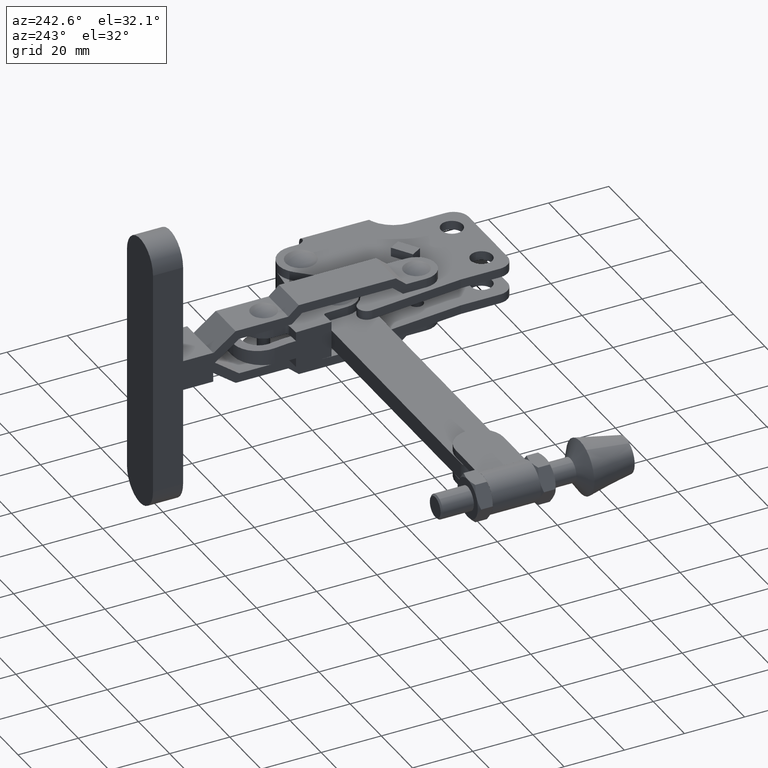
[diagram: clean part render]
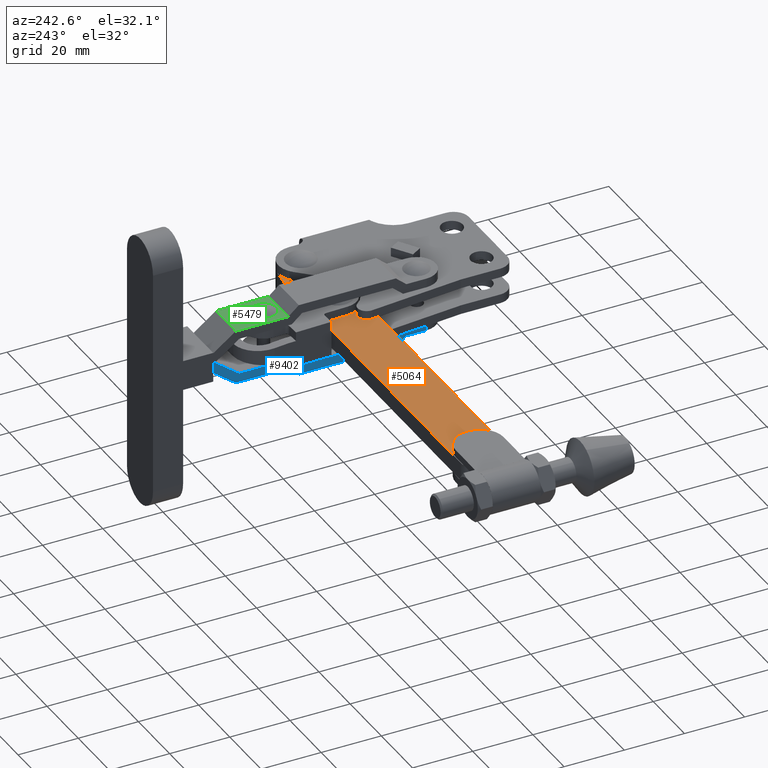
[diagram: same view with three faces highlighted in distinct colors, each labeled with its STEP entity id]
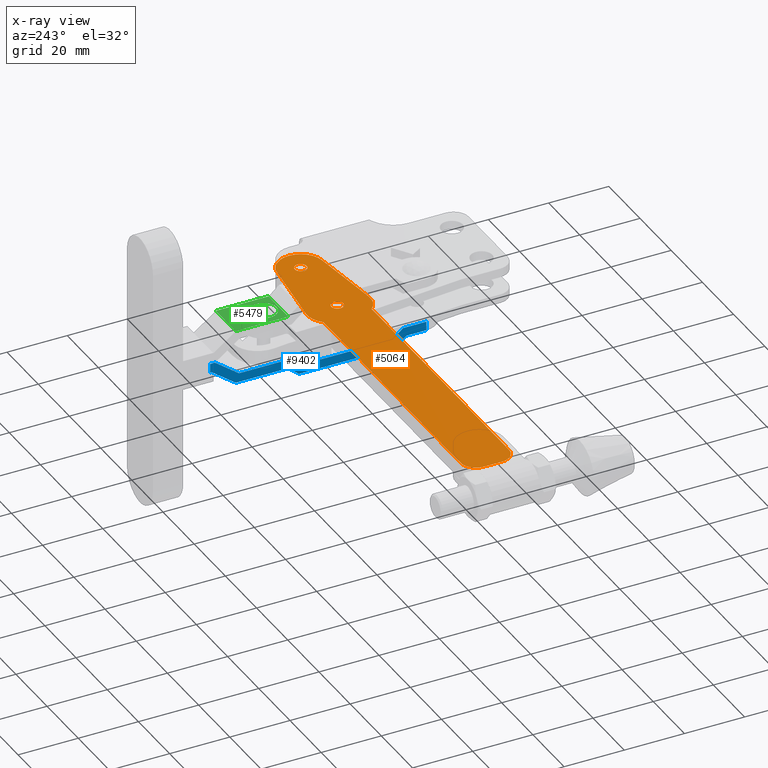
[diagram: x-ray of the same camera — body ghosted, the three highlighted faces saturated]
A machine part, auxiliary view with three faces highlighted in distinct colors.
The next image is the same camera in x-ray (body ghosted, the three faces saturated) — at least one of them is partly hidden behind the body in this view.
Their STEP definitions:

[orange] entity #5064 — the highlighted planar face has unit normal (0, -0, 1).
#175 = VERTEX_POINT ( 'NONE', #9964 ) ;
#482 = DIRECTION ( 'NONE',  ( 3.503246160812045800E-046, -6.509510804345187600E-030, 1.000000000000000000 ) ) ;
#1008 = DIRECTION ( 'NONE',  ( 3.503246160812045800E-046, -6.509510804345187600E-030, 1.000000000000000000 ) ) ;
#1068 = CIRCLE ( 'NONE', #4177, 2.000000000000001800 ) ;
#1230 = ORIENTED_EDGE ( 'NONE', *, *, #4815, .T. ) ;
#1297 = LINE ( 'NONE', #9093, #7677 ) ;
#1375 = DIRECTION ( 'NONE',  ( -3.503246160812045800E-046, 6.509510804345187600E-030, -1.000000000000000000 ) ) ;
#1437 = DIRECTION ( 'NONE',  ( -3.503246160812045800E-046, 6.509510804345187600E-030, -1.000000000000000000 ) ) ;
#1627 = EDGE_CURVE ( 'NONE', #7933, #2805, #4290, .T. ) ;
#1652 = CARTESIAN_POINT ( 'NONE',  ( -12.19999999999986600, 41.79999999999976300, 3.000000000000004400 ) ) ;
#1748 = CARTESIAN_POINT ( 'NONE',  ( -36.59999999999988100, 42.79999999999975600, 3.000000000000006200 ) ) ;
#1886 = DIRECTION ( 'NONE',  ( -3.503246160812045800E-046, 6.509510804345187600E-030, -1.000000000000000000 ) ) ;
#2004 = ORIENTED_EDGE ( 'NONE', *, *, #1627, .T. ) ;
#2198 = EDGE_CURVE ( 'NONE', #4962, #8898, #3998, .T. ) ;
#2271 = AXIS2_PLACEMENT_3D ( 'NONE', #3966, #3956, #3925 ) ;
#2349 = EDGE_CURVE ( 'NONE', #9062, #3521, #4881, .T. ) ;
#2516 = CARTESIAN_POINT ( 'NONE',  ( -35.68476069668708600, 29.35605366638937100, 3.000000000000004400 ) ) ;
#2546 = ORIENTED_EDGE ( 'NONE', *, *, #9326, .T. ) ;
#2587 = AXIS2_PLACEMENT_3D ( 'NONE', #8314, #8101, #7905 ) ;
#2593 = DIRECTION ( 'NONE',  ( 1.000000000000000000, 0.0000000000000000000, 0.0000000000000000000 ) ) ;
#2631 = EDGE_LOOP ( 'NONE', ( #6855, #4064 ) ) ;
#2805 = VERTEX_POINT ( 'NONE', #6394 ) ;
#3010 = AXIS2_PLACEMENT_3D ( 'NONE', #5446, #482, #6294 ) ;
#3029 = EDGE_CURVE ( 'NONE', #7976, #5738, #4239, .T. ) ;
#3032 = VERTEX_POINT ( 'NONE', #4697 ) ;
#3106 = AXIS2_PLACEMENT_3D ( 'NONE', #4373, #4360, #4288 ) ;
#3275 = DIRECTION ( 'NONE',  ( 1.000000000000000000, 0.0000000000000000000, -3.982729777831131600E-059 ) ) ;
#3287 = DIRECTION ( 'NONE',  ( 3.982729777831131600E-059, -6.509510804345187600E-030, 1.000000000000000000 ) ) ;
#3387 = CARTESIAN_POINT ( 'NONE',  ( -35.68476069668709300, 50.24394633361017500, 3.000000000000004400 ) ) ;
#3395 = PLANE ( 'NONE',  #7764 ) ;
#3410 = CIRCLE ( 'NONE', #5476, 2.000000000000001800 ) ;
#3436 = CARTESIAN_POINT ( 'NONE',  ( -12.19999999999986600, 39.79999999999976300, 3.000000000000004400 ) ) ;
#3472 = CIRCLE ( 'NONE', #5196, 2.000000000000001800 ) ;
#3521 = VERTEX_POINT ( 'NONE', #6604 ) ;
#3627 = ORIENTED_EDGE ( 'NONE', *, *, #9507, .T. ) ;
#3878 = ORIENTED_EDGE ( 'NONE', *, *, #8267, .T. ) ;
#3925 = DIRECTION ( 'NONE',  ( 0.0000000000000000000, -1.000000000000000000, 0.0000000000000000000 ) ) ;
#3956 = DIRECTION ( 'NONE',  ( -3.503246160812045800E-046, 6.509510804345187600E-030, -1.000000000000000000 ) ) ;
#3966 = CARTESIAN_POINT ( 'NONE',  ( -35.59999999999987400, 39.79999999999976300, 3.000000000000004400 ) ) ;
#3998 = LINE ( 'NONE', #7964, #10107 ) ;
#4014 = EDGE_CURVE ( 'NONE', #5738, #5396, #9514, .T. ) ;
#4064 = ORIENTED_EDGE ( 'NONE', *, *, #6447, .T. ) ;
#4177 = AXIS2_PLACEMENT_3D ( 'NONE', #6877, #1886, #7702 ) ;
#4239 = CIRCLE ( 'NONE', #3106, 7.500000000000007100 ) ;
#4288 = DIRECTION ( 'NONE',  ( 1.000000000000000000, 0.0000000000000000000, 0.0000000000000000000 ) ) ;
#4290 = LINE ( 'NONE', #6659, #5971 ) ;
#4360 = DIRECTION ( 'NONE',  ( 3.503246160812045800E-046, -6.509510804345187600E-030, 1.000000000000000000 ) ) ;
#4373 = CARTESIAN_POINT ( 'NONE',  ( -12.19999999999986600, 39.79999999999976300, 3.000000000000004400 ) ) ;
#4398 = ORIENTED_EDGE ( 'NONE', *, *, #7567, .T. ) ;
#4509 = CARTESIAN_POINT ( 'NONE',  ( -35.68476069668710000, 50.24394633361016100, 3.000000000000004400 ) ) ;
#4614 = EDGE_CURVE ( 'NONE', #8898, #175, #8843, .T. ) ;
#4697 = CARTESIAN_POINT ( 'NONE',  ( -135.1999999999999900, 36.79999999999963500, 3.000000000000004400 ) ) ;
#4743 = VERTEX_POINT ( 'NONE', #10175 ) ;
#4753 = CIRCLE ( 'NONE', #7614, 7.500000000000013300 ) ;
#4815 = EDGE_CURVE ( 'NONE', #9719, #7976, #1297, .T. ) ;
#4881 = CIRCLE ( 'NONE', #2271, 2.000000000000001800 ) ;
#4962 = VERTEX_POINT ( 'NONE', #5666 ) ;
#5064 = ADVANCED_FACE ( 'NONE', ( #5441, #7402, #5184 ), #3395, .T. ) ;
#5184 = FACE_BOUND ( 'NONE', #2631, .T. ) ;
#5196 = AXIS2_PLACEMENT_3D ( 'NONE', #6430, #1437, #7259 ) ;
#5396 = VERTEX_POINT ( 'NONE', #4509 ) ;
#5441 = FACE_OUTER_BOUND ( 'NONE', #6546, .T. ) ;
#5446 = CARTESIAN_POINT ( 'NONE',  ( -130.1999999999998200, 36.79999999999966300, 3.000000000000004400 ) ) ;
#5476 = AXIS2_PLACEMENT_3D ( 'NONE', #6363, #1375, #7188 ) ;
#5666 = CARTESIAN_POINT ( 'NONE',  ( -42.19016994374939600, 47.79999999999972700, 3.000000000000006200 ) ) ;
#5738 = VERTEX_POINT ( 'NONE', #9160 ) ;
#5762 = CIRCLE ( 'NONE', #8418, 7.499999999999996400 ) ;
#5897 = LINE ( 'NONE', #9009, #10045 ) ;
#5971 = VECTOR ( 'NONE', #8564, 1000.000000000000000 ) ;
#5977 = CARTESIAN_POINT ( 'NONE',  ( -36.59999999999989500, 36.79999999999977000, 3.000000000000006200 ) ) ;
#6294 = DIRECTION ( 'NONE',  ( 1.000000000000000000, 0.0000000000000000000, 0.0000000000000000000 ) ) ;
#6363 = CARTESIAN_POINT ( 'NONE',  ( -12.19999999999986600, 39.79999999999976300, 3.000000000000004400 ) ) ;
#6372 = CARTESIAN_POINT ( 'NONE',  ( -130.1999999999997900, 47.79999999999955000, 3.000000000000004400 ) ) ;
#6394 = CARTESIAN_POINT ( 'NONE',  ( -42.19016994374933900, 31.79999999999969500, 3.000000000000006200 ) ) ;
#6430 = CARTESIAN_POINT ( 'NONE',  ( -35.59999999999987400, 39.79999999999976300, 3.000000000000004400 ) ) ;
#6447 = EDGE_CURVE ( 'NONE', #3521, #9062, #3472, .T. ) ;
#6546 = EDGE_LOOP ( 'NONE', ( #8741, #9327, #4398, #7732, #9712, #3627, #2546, #2004, #3878, #1230 ) ) ;
#6565 = CARTESIAN_POINT ( 'NONE',  ( -35.59999999999987400, 41.79999999999977000, 3.000000000000004400 ) ) ;
#6604 = CARTESIAN_POINT ( 'NONE',  ( -35.59999999999987400, 37.79999999999976300, 3.000000000000004400 ) ) ;
#6659 = CARTESIAN_POINT ( 'NONE',  ( -130.1999999999999300, 31.79999999999957100, 3.000000000000004400 ) ) ;
#6825 = DIRECTION ( 'NONE',  ( 1.000000000000000000, 0.0000000000000000000, 0.0000000000000000000 ) ) ;
#6855 = ORIENTED_EDGE ( 'NONE', *, *, #2349, .T. ) ;
#6877 = CARTESIAN_POINT ( 'NONE',  ( -12.19999999999986600, 39.79999999999976300, 3.000000000000004400 ) ) ;
#7188 = DIRECTION ( 'NONE',  ( 0.0000000000000000000, -1.000000000000000000, 0.0000000000000000000 ) ) ;
#7259 = DIRECTION ( 'NONE',  ( 0.0000000000000000000, -1.000000000000000000, 0.0000000000000000000 ) ) ;
#7297 = VECTOR ( 'NONE', #7501, 1000.000000000000100 ) ;
#7402 = FACE_BOUND ( 'NONE', #8660, .T. ) ;
#7501 = DIRECTION ( 'NONE',  ( -0.9925261778147187500, 0.1220319071083673000, -7.888609052210115400E-031 ) ) ;
#7567 = EDGE_CURVE ( 'NONE', #5396, #4962, #5762, .T. ) ;
#7571 = DIRECTION ( 'NONE',  ( 3.503246160812045800E-046, -6.509510804345187600E-030, 1.000000000000000000 ) ) ;
#7614 = AXIS2_PLACEMENT_3D ( 'NONE', #5977, #1008, #6825 ) ;
#7677 = VECTOR ( 'NONE', #8544, 1000.000000000000200 ) ;
#7702 = DIRECTION ( 'NONE',  ( 0.0000000000000000000, -1.000000000000000000, 0.0000000000000000000 ) ) ;
#7732 = ORIENTED_EDGE ( 'NONE', *, *, #2198, .T. ) ;
#7764 = AXIS2_PLACEMENT_3D ( 'NONE', #3436, #3287, #3275 ) ;
#7860 = DIRECTION ( 'NONE',  ( -1.000000000000000000, -1.887379141862766500E-015, 3.982729777831131600E-059 ) ) ;
#7905 = DIRECTION ( 'NONE',  ( 1.000000000000000000, 0.0000000000000000000, 0.0000000000000000000 ) ) ;
#7933 = VERTEX_POINT ( 'NONE', #10421 ) ;
#7964 = CARTESIAN_POINT ( 'NONE',  ( -130.1999999999997900, 47.79999999999955000, 3.000000000000004400 ) ) ;
#7976 = VERTEX_POINT ( 'NONE', #8852 ) ;
#8101 = DIRECTION ( 'NONE',  ( 3.503246160812045800E-046, -6.509510804345187600E-030, 1.000000000000000000 ) ) ;
#8267 = EDGE_CURVE ( 'NONE', #2805, #9719, #4753, .T. ) ;
#8314 = CARTESIAN_POINT ( 'NONE',  ( -130.1999999999998500, 42.79999999999947800, 3.000000000000004400 ) ) ;
#8418 = AXIS2_PLACEMENT_3D ( 'NONE', #1748, #7571, #2593 ) ;
#8544 = DIRECTION ( 'NONE',  ( 0.9925261778147187500, 0.1220319071083672500, -8.381647117973250400E-031 ) ) ;
#8564 = DIRECTION ( 'NONE',  ( 1.000000000000000000, 1.276756478318930200E-015, 0.0000000000000000000 ) ) ;
#8660 = EDGE_LOOP ( 'NONE', ( #9258, #10319 ) ) ;
#8686 = VERTEX_POINT ( 'NONE', #1652 ) ;
#8741 = ORIENTED_EDGE ( 'NONE', *, *, #3029, .T. ) ;
#8843 = CIRCLE ( 'NONE', #2587, 5.000000000000060400 ) ;
#8852 = CARTESIAN_POINT ( 'NONE',  ( -11.28476069668710300, 32.35605366638936400, 3.000000000000005300 ) ) ;
#8898 = VERTEX_POINT ( 'NONE', #6372 ) ;
#9009 = CARTESIAN_POINT ( 'NONE',  ( -135.1999999999999000, 42.79999999999950000, 3.000000000000004400 ) ) ;
#9062 = VERTEX_POINT ( 'NONE', #6565 ) ;
#9093 = CARTESIAN_POINT ( 'NONE',  ( -35.68476069668708600, 29.35605366638937100, 3.000000000000004400 ) ) ;
#9160 = CARTESIAN_POINT ( 'NONE',  ( -11.28476069668710300, 47.24394633361016800, 3.000000000000004400 ) ) ;
#9258 = ORIENTED_EDGE ( 'NONE', *, *, #10314, .T. ) ;
#9303 = CIRCLE ( 'NONE', #3010, 5.000000000000060400 ) ;
#9326 = EDGE_CURVE ( 'NONE', #3032, #7933, #9303, .T. ) ;
#9327 = ORIENTED_EDGE ( 'NONE', *, *, #4014, .T. ) ;
#9507 = EDGE_CURVE ( 'NONE', #175, #3032, #5897, .T. ) ;
#9514 = LINE ( 'NONE', #3387, #7297 ) ;
#9712 = ORIENTED_EDGE ( 'NONE', *, *, #4614, .T. ) ;
#9719 = VERTEX_POINT ( 'NONE', #2516 ) ;
#9964 = CARTESIAN_POINT ( 'NONE',  ( -135.1999999999999000, 42.79999999999950000, 3.000000000000004400 ) ) ;
#10045 = VECTOR ( 'NONE', #10693, 1000.000000000000000 ) ;
#10107 = VECTOR ( 'NONE', #7860, 1000.000000000000000 ) ;
#10109 = EDGE_CURVE ( 'NONE', #4743, #8686, #3410, .T. ) ;
#10175 = CARTESIAN_POINT ( 'NONE',  ( -12.19999999999986600, 37.79999999999975600, 3.000000000000004400 ) ) ;
#10314 = EDGE_CURVE ( 'NONE', #8686, #4743, #1068, .T. ) ;
#10319 = ORIENTED_EDGE ( 'NONE', *, *, #10109, .T. ) ;
#10421 = CARTESIAN_POINT ( 'NONE',  ( -130.1999999999999300, 31.79999999999957100, 3.000000000000004400 ) ) ;
#10693 = DIRECTION ( 'NONE',  ( 0.0000000000000000000, -1.000000000000000000, 6.485027419927159200E-030 ) ) ;

[blue] entity #9402 — the highlighted planar face has unit normal (-1, 0, 0).
#137 = CARTESIAN_POINT ( 'NONE',  ( -43.15000000000017600, 20.75302242303880000, -9.000000000000019500 ) ) ;
#160 = CARTESIAN_POINT ( 'NONE',  ( -43.15000000000017600, 9.552987906726158900, -52.40920625188515200 ) ) ;
#223 = VECTOR ( 'NONE', #9728, 1000.000000000000000 ) ;
#342 = EDGE_CURVE ( 'NONE', #3550, #4811, #1602, .T. ) ;
#344 = EDGE_CURVE ( 'NONE', #4470, #8927, #7978, .T. ) ;
#415 = CARTESIAN_POINT ( 'NONE',  ( -43.15000000000017600, -26.32467528299208600, -3.000000000000039500 ) ) ;
#421 = ORIENTED_EDGE ( 'NONE', *, *, #5325, .F. ) ;
#557 = LINE ( 'NONE', #9630, #9410 ) ;
#623 = EDGE_LOOP ( 'NONE', ( #7733, #2550, #10527, #4530, #10097, #6818, #421, #4643, #8251, #4970, #1684, #2259, #1955, #7322, #4245, #10030 ) ) ;
#640 = EDGE_CURVE ( 'NONE', #7598, #9553, #557, .T. ) ;
#871 = CARTESIAN_POINT ( 'NONE',  ( -43.15000000000017600, 7.412668944850938900, -50.09771233298401700 ) ) ;
#947 = CARTESIAN_POINT ( 'NONE',  ( -43.15000000000017600, 84.35999999999982900, -1.163654687864994600E-014 ) ) ;
#970 = EDGE_CURVE ( 'NONE', #6316, #8927, #8862, .T. ) ;
#1090 = DIRECTION ( 'NONE',  ( -1.079357025468282500E-018, -0.7592566023653024600, -0.6507913734559616100 ) ) ;
#1227 = CARTESIAN_POINT ( 'NONE',  ( -43.15000000000017600, 58.85999999999989300, -6.000000000000012400 ) ) ;
#1236 = CARTESIAN_POINT ( 'NONE',  ( -43.15000000000017600, 77.49000000000022200, -9.000000000000012400 ) ) ;
#1286 = VERTEX_POINT ( 'NONE', #947 ) ;
#1302 = EDGE_CURVE ( 'NONE', #5952, #2048, #10258, .T. ) ;
#1347 = VECTOR ( 'NONE', #7235, 1000.000000000000000 ) ;
#1389 = CARTESIAN_POINT ( 'NONE',  ( -43.15000000000017600, 55.35999999999983600, -9.000000000000019500 ) ) ;
#1445 = CARTESIAN_POINT ( 'NONE',  ( -43.15000000000017600, -26.32467528299208600, 10.73747740049973800 ) ) ;
#1602 = LINE ( 'NONE', #6300, #5757 ) ;
#1684 = ORIENTED_EDGE ( 'NONE', *, *, #1302, .T. ) ;
#1955 = ORIENTED_EDGE ( 'NONE', *, *, #344, .T. ) ;
#2048 = VERTEX_POINT ( 'NONE', #4673 ) ;
#2102 = DIRECTION ( 'NONE',  ( 0.0000000000000000000, -1.000000000000000000, 1.915454074022858400E-020 ) ) ;
#2106 = CARTESIAN_POINT ( 'NONE',  ( -43.15000000000017600, 14.09999999999989100, 43.99999999999998600 ) ) ;
#2213 = CARTESIAN_POINT ( 'NONE',  ( -43.15000000000017600, -26.32467528299208600, -9.000000000000012400 ) ) ;
#2259 = ORIENTED_EDGE ( 'NONE', *, *, #3650, .T. ) ;
#2262 = VECTOR ( 'NONE', #6496, 1000.000000000000000 ) ;
#2285 = DIRECTION ( 'NONE',  ( 1.658530013599391000E-018, 1.915454074022922200E-020, 1.000000000000000000 ) ) ;
#2384 = CARTESIAN_POINT ( 'NONE',  ( -43.15000000000017600, 85.48999999999986700, -3.000000000000014200 ) ) ;
#2550 = ORIENTED_EDGE ( 'NONE', *, *, #342, .T. ) ;
#2605 = CARTESIAN_POINT ( 'NONE',  ( -43.15000000000017600, 76.35999999999984300, -6.000000000000011500 ) ) ;
#2681 = LINE ( 'NONE', #9793, #223 ) ;
#2703 = VECTOR ( 'NONE', #5195, 1000.000000000000000 ) ;
#2880 = EDGE_CURVE ( 'NONE', #10573, #7598, #2681, .T. ) ;
#3068 = VECTOR ( 'NONE', #2102, 1000.000000000000000 ) ;
#3285 = VECTOR ( 'NONE', #8291, 999.9999999999998900 ) ;
#3348 = CARTESIAN_POINT ( 'NONE',  ( -43.15000000000017600, 85.98999999999986700, -1.163657810055135300E-014 ) ) ;
#3367 = AXIS2_PLACEMENT_3D ( 'NONE', #1445, #7264, #2285 ) ;
#3386 = EDGE_CURVE ( 'NONE', #1286, #8198, #8900, .T. ) ;
#3550 = VERTEX_POINT ( 'NONE', #3348 ) ;
#3650 = EDGE_CURVE ( 'NONE', #2048, #4470, #7718, .T. ) ;
#3729 = CARTESIAN_POINT ( 'NONE',  ( -43.15000000000017600, 59.97256688033173300, -9.000000000000012400 ) ) ;
#3885 = CARTESIAN_POINT ( 'NONE',  ( -43.15000000000017600, -26.32467528299208600, -9.000000000000019500 ) ) ;
#4010 = LINE ( 'NONE', #5233, #6224 ) ;
#4245 = ORIENTED_EDGE ( 'NONE', *, *, #4430, .T. ) ;
#4430 = EDGE_CURVE ( 'NONE', #6316, #8198, #7944, .T. ) ;
#4445 = DIRECTION ( 'NONE',  ( 0.0000000000000000000, 1.000000000000000000, -1.915454074022858400E-020 ) ) ;
#4470 = VERTEX_POINT ( 'NONE', #6896 ) ;
#4530 = ORIENTED_EDGE ( 'NONE', *, *, #5471, .T. ) ;
#4569 = DIRECTION ( 'NONE',  ( 3.752727326351740700E-034, 1.000000000000000000, 2.262491249344958400E-016 ) ) ;
#4637 = DIRECTION ( 'NONE',  ( -9.951180081596616200E-019, -0.7999999999999878300, -0.6000000000000161900 ) ) ;
#4643 = ORIENTED_EDGE ( 'NONE', *, *, #640, .F. ) ;
#4673 = CARTESIAN_POINT ( 'NONE',  ( -43.15000000000017600, 21.85999999999986400, -6.000000000000021300 ) ) ;
#4811 = VERTEX_POINT ( 'NONE', #8699 ) ;
#4954 = CARTESIAN_POINT ( 'NONE',  ( -43.15000000000017600, 24.25302242303876500, -11.99999999999998900 ) ) ;
#4970 = ORIENTED_EDGE ( 'NONE', *, *, #10057, .F. ) ;
#5193 = VERTEX_POINT ( 'NONE', #9916 ) ;
#5195 = DIRECTION ( 'NONE',  ( -1.082119647919183800E-018, -0.7578256793026165700, -0.6524570788868243600 ) ) ;
#5233 = CARTESIAN_POINT ( 'NONE',  ( -43.15000000000017600, -26.32467528299208600, -11.99999999999998900 ) ) ;
#5287 = LINE ( 'NONE', #7082, #3068 ) ;
#5325 = EDGE_CURVE ( 'NONE', #9553, #5193, #4010, .T. ) ;
#5471 = EDGE_CURVE ( 'NONE', #10614, #9294, #5817, .T. ) ;
#5521 = EDGE_CURVE ( 'NONE', #10400, #9294, #6750, .T. ) ;
#5719 = VECTOR ( 'NONE', #9884, 1000.000000000000000 ) ;
#5757 = VECTOR ( 'NONE', #6405, 1000.000000000000000 ) ;
#5817 = LINE ( 'NONE', #8797, #7773 ) ;
#5952 = VERTEX_POINT ( 'NONE', #6100 ) ;
#6100 = CARTESIAN_POINT ( 'NONE',  ( -43.15000000000017600, 14.09999999999989100, -6.000000000000021300 ) ) ;
#6189 = EDGE_CURVE ( 'NONE', #10400, #5193, #9065, .T. ) ;
#6224 = VECTOR ( 'NONE', #4445, 1000.000000000000000 ) ;
#6300 = CARTESIAN_POINT ( 'NONE',  ( -43.15000000000017600, 85.98999999999989500, 10.73747740049947700 ) ) ;
#6316 = VERTEX_POINT ( 'NONE', #1227 ) ;
#6318 = EDGE_CURVE ( 'NONE', #3550, #1286, #5287, .T. ) ;
#6405 = DIRECTION ( 'NONE',  ( -1.658530013599391000E-018, -2.312983789176260900E-015, -1.000000000000000000 ) ) ;
#6496 = DIRECTION ( 'NONE',  ( -9.951180081596350400E-019, -0.7999999999999998200, -0.6000000000000003100 ) ) ;
#6669 = VECTOR ( 'NONE', #1090, 1000.000000000000000 ) ;
#6745 = DIRECTION ( 'NONE',  ( 0.0000000000000000000, 1.000000000000000000, -1.915454074022858400E-020 ) ) ;
#6750 = LINE ( 'NONE', #2213, #8939 ) ;
#6818 = ORIENTED_EDGE ( 'NONE', *, *, #6189, .T. ) ;
#6896 = CARTESIAN_POINT ( 'NONE',  ( -43.15000000000017600, 25.35999999999991800, -9.000000000000019500 ) ) ;
#7079 = VECTOR ( 'NONE', #4569, 1000.000000000000000 ) ;
#7082 = CARTESIAN_POINT ( 'NONE',  ( -43.15000000000017600, -26.32467528299208600, -1.163442676452791900E-014 ) ) ;
#7196 = DIRECTION ( 'NONE',  ( 0.0000000000000000000, 1.000000000000000000, -1.915454074022858400E-020 ) ) ;
#7235 = DIRECTION ( 'NONE',  ( 0.0000000000000000000, 1.000000000000000000, -1.915454074022858400E-020 ) ) ;
#7264 = DIRECTION ( 'NONE',  ( -1.000000000000000000, 0.0000000000000000000, 1.658530013599391000E-018 ) ) ;
#7282 = CARTESIAN_POINT ( 'NONE',  ( -43.15000000000017600, 14.09999999999989100, -9.000000000000019500 ) ) ;
#7322 = ORIENTED_EDGE ( 'NONE', *, *, #970, .F. ) ;
#7343 = LINE ( 'NONE', #415, #7079 ) ;
#7598 = VERTEX_POINT ( 'NONE', #137 ) ;
#7711 = CARTESIAN_POINT ( 'NONE',  ( -43.15000000000017600, -26.32467528299208600, -6.000000000000021300 ) ) ;
#7718 = LINE ( 'NONE', #8216, #3285 ) ;
#7733 = ORIENTED_EDGE ( 'NONE', *, *, #6318, .F. ) ;
#7773 = VECTOR ( 'NONE', #4637, 1000.000000000000100 ) ;
#7832 = VECTOR ( 'NONE', #8751, 1000.000000000000000 ) ;
#7944 = LINE ( 'NONE', #9464, #5719 ) ;
#7978 = LINE ( 'NONE', #3885, #1347 ) ;
#7984 = FACE_OUTER_BOUND ( 'NONE', #623, .T. ) ;
#7993 = DIRECTION ( 'NONE',  ( -1.079357025468294200E-018, 0.7592566023652964600, -0.6507913734559687100 ) ) ;
#8027 = PLANE ( 'NONE',  #3367 ) ;
#8198 = VERTEX_POINT ( 'NONE', #2605 ) ;
#8216 = CARTESIAN_POINT ( 'NONE',  ( -43.15000000000017600, -3.576176918184240000, 15.80243735844315500 ) ) ;
#8251 = ORIENTED_EDGE ( 'NONE', *, *, #2880, .F. ) ;
#8291 = DIRECTION ( 'NONE',  ( -1.079357025468284000E-018, 0.7592566023653017900, -0.6507913734559625000 ) ) ;
#8568 = CARTESIAN_POINT ( 'NONE',  ( -43.15000000000017600, 8.367818666645161900, -56.99413600001605600 ) ) ;
#8699 = CARTESIAN_POINT ( 'NONE',  ( -43.15000000000017600, 85.98999999999986700, -3.000000000000013800 ) ) ;
#8751 = DIRECTION ( 'NONE',  ( -1.658530013599391000E-018, -1.915454074022922200E-020, -1.000000000000000000 ) ) ;
#8797 = CARTESIAN_POINT ( 'NONE',  ( -43.15000000000017600, 10.21461866664727400, -59.45653600001685400 ) ) ;
#8862 = LINE ( 'NONE', #871, #6669 ) ;
#8900 = LINE ( 'NONE', #8568, #2262 ) ;
#8927 = VERTEX_POINT ( 'NONE', #1389 ) ;
#8939 = VECTOR ( 'NONE', #7196, 1000.000000000000000 ) ;
#9065 = LINE ( 'NONE', #160, #2703 ) ;
#9294 = VERTEX_POINT ( 'NONE', #1236 ) ;
#9304 = EDGE_CURVE ( 'NONE', #10614, #4811, #7343, .T. ) ;
#9402 = ADVANCED_FACE ( 'NONE', ( #7984 ), #8027, .T. ) ;
#9410 = VECTOR ( 'NONE', #7993, 999.9999999999998900 ) ;
#9464 = CARTESIAN_POINT ( 'NONE',  ( -43.15000000000017600, -26.32467528299208600, -6.000000000000016900 ) ) ;
#9553 = VERTEX_POINT ( 'NONE', #4954 ) ;
#9630 = CARTESIAN_POINT ( 'NONE',  ( -43.15000000000017600, -5.527367421367358700, 13.52604843806241100 ) ) ;
#9728 = DIRECTION ( 'NONE',  ( 0.0000000000000000000, 1.000000000000000000, -1.915454074022858400E-020 ) ) ;
#9793 = CARTESIAN_POINT ( 'NONE',  ( -43.15000000000017600, -26.32467528299208600, -9.000000000000021300 ) ) ;
#9884 = DIRECTION ( 'NONE',  ( 8.220259857722872600E-035, 1.000000000000000000, 4.954437334431155400E-017 ) ) ;
#9916 = CARTESIAN_POINT ( 'NONE',  ( -43.15000000000017600, 56.48808167590009100, -11.99999999999998900 ) ) ;
#10014 = VECTOR ( 'NONE', #6745, 1000.000000000000000 ) ;
#10030 = ORIENTED_EDGE ( 'NONE', *, *, #3386, .F. ) ;
#10057 = EDGE_CURVE ( 'NONE', #5952, #10573, #10279, .T. ) ;
#10097 = ORIENTED_EDGE ( 'NONE', *, *, #5521, .F. ) ;
#10258 = LINE ( 'NONE', #7711, #10014 ) ;
#10279 = LINE ( 'NONE', #2106, #7832 ) ;
#10400 = VERTEX_POINT ( 'NONE', #3729 ) ;
#10527 = ORIENTED_EDGE ( 'NONE', *, *, #9304, .F. ) ;
#10573 = VERTEX_POINT ( 'NONE', #7282 ) ;
#10614 = VERTEX_POINT ( 'NONE', #2384 ) ;

[green] entity #5479 — the highlighted planar face has unit normal (0, 0, 1).
#83 = ORIENTED_EDGE ( 'NONE', *, *, #5734, .T. ) ;
#466 = CARTESIAN_POINT ( 'NONE',  ( -36.80000000000016100, 60.64999999999995600, 9.000000000000010700 ) ) ;
#664 = CIRCLE ( 'NONE', #4849, 4.249999999999996400 ) ;
#948 = LINE ( 'NONE', #6708, #2884 ) ;
#1007 = LINE ( 'NONE', #9476, #7379 ) ;
#1112 = VERTEX_POINT ( 'NONE', #3945 ) ;
#1557 = EDGE_LOOP ( 'NONE', ( #6086, #9422 ) ) ;
#1775 = EDGE_CURVE ( 'NONE', #10425, #10454, #9987, .T. ) ;
#1895 = CARTESIAN_POINT ( 'NONE',  ( -30.45000000000017300, 77.49000000000022200, 8.999999999999989300 ) ) ;
#1910 = DIRECTION ( 'NONE',  ( 0.0000000000000000000, 1.000000000000000000, -1.915454074022858400E-020 ) ) ;
#2457 = ORIENTED_EDGE ( 'NONE', *, *, #8369, .F. ) ;
#2545 = EDGE_CURVE ( 'NONE', #3581, #10316, #5941, .T. ) ;
#2686 = AXIS2_PLACEMENT_3D ( 'NONE', #8831, #3845, #9661 ) ;
#2884 = VECTOR ( 'NONE', #4194, 1000.000000000000000 ) ;
#3065 = VECTOR ( 'NONE', #9982, 1000.000000000000000 ) ;
#3093 = ORIENTED_EDGE ( 'NONE', *, *, #9752, .F. ) ;
#3434 = ORIENTED_EDGE ( 'NONE', *, *, #2545, .T. ) ;
#3581 = VERTEX_POINT ( 'NONE', #1895 ) ;
#3845 = DIRECTION ( 'NONE',  ( 1.658530013599391000E-018, 1.915454074022922200E-020, 1.000000000000000000 ) ) ;
#3862 = FACE_OUTER_BOUND ( 'NONE', #6979, .T. ) ;
#3945 = CARTESIAN_POINT ( 'NONE',  ( -30.45000000000017300, 59.97256688033173300, 8.999999999999989300 ) ) ;
#4022 = EDGE_CURVE ( 'NONE', #10454, #10425, #664, .T. ) ;
#4045 = DIRECTION ( 'NONE',  ( 7.000092359566960900E-019, 1.120141832160471700E-017, 1.000000000000000000 ) ) ;
#4186 = CARTESIAN_POINT ( 'NONE',  ( -30.45000000000017300, -26.32467528299208600, 8.999999999999989300 ) ) ;
#4194 = DIRECTION ( 'NONE',  ( -1.000000000000000000, 0.0000000000000000000, 1.658530013599391000E-018 ) ) ;
#4754 = DIRECTION ( 'NONE',  ( 1.000000000000000000, 0.0000000000000000000, 0.0000000000000000000 ) ) ;
#4818 = CARTESIAN_POINT ( 'NONE',  ( -36.80000000000016100, 64.89999999999996300, 9.000000000000010700 ) ) ;
#4849 = AXIS2_PLACEMENT_3D ( 'NONE', #4818, #4045, #4754 ) ;
#5189 = CARTESIAN_POINT ( 'NONE',  ( -43.15000000000017600, 77.49000000000022200, 8.999999999999989300 ) ) ;
#5478 = PLANE ( 'NONE',  #2686 ) ;
#5479 = ADVANCED_FACE ( 'NONE', ( #9972, #3862 ), #5478, .T. ) ;
#5545 = CARTESIAN_POINT ( 'NONE',  ( -43.15000000000017600, 59.97256688033173300, 8.999999999999989300 ) ) ;
#5701 = AXIS2_PLACEMENT_3D ( 'NONE', #8778, #8918, #8588 ) ;
#5734 = EDGE_CURVE ( 'NONE', #1112, #3581, #7504, .T. ) ;
#5941 = LINE ( 'NONE', #9281, #7897 ) ;
#6086 = ORIENTED_EDGE ( 'NONE', *, *, #4022, .F. ) ;
#6708 = CARTESIAN_POINT ( 'NONE',  ( -30.45000000000017300, 59.97256688033173300, 8.999999999999989300 ) ) ;
#6979 = EDGE_LOOP ( 'NONE', ( #2457, #3093, #83, #3434 ) ) ;
#7379 = VECTOR ( 'NONE', #1910, 1000.000000000000000 ) ;
#7504 = LINE ( 'NONE', #4186, #3065 ) ;
#7897 = VECTOR ( 'NONE', #10509, 1000.000000000000000 ) ;
#8369 = EDGE_CURVE ( 'NONE', #9443, #10316, #1007, .T. ) ;
#8588 = DIRECTION ( 'NONE',  ( 1.000000000000000000, 0.0000000000000000000, 0.0000000000000000000 ) ) ;
#8778 = CARTESIAN_POINT ( 'NONE',  ( -36.80000000000016100, 64.89999999999996300, 9.000000000000010700 ) ) ;
#8782 = CARTESIAN_POINT ( 'NONE',  ( -36.80000000000016100, 69.14999999999996300, 9.000000000000010700 ) ) ;
#8831 = CARTESIAN_POINT ( 'NONE',  ( -30.45000000000017300, -26.32467528299208600, 8.999999999999989300 ) ) ;
#8918 = DIRECTION ( 'NONE',  ( 7.000092359566960900E-019, 1.120141832160471700E-017, 1.000000000000000000 ) ) ;
#9281 = CARTESIAN_POINT ( 'NONE',  ( -30.45000000000017300, 77.49000000000022200, 8.999999999999989300 ) ) ;
#9422 = ORIENTED_EDGE ( 'NONE', *, *, #1775, .F. ) ;
#9443 = VERTEX_POINT ( 'NONE', #5545 ) ;
#9476 = CARTESIAN_POINT ( 'NONE',  ( -43.15000000000017600, -26.32467528299208600, 8.999999999999989300 ) ) ;
#9661 = DIRECTION ( 'NONE',  ( 1.000000000000000000, 0.0000000000000000000, -1.658530013599391000E-018 ) ) ;
#9752 = EDGE_CURVE ( 'NONE', #1112, #9443, #948, .T. ) ;
#9972 = FACE_BOUND ( 'NONE', #1557, .T. ) ;
#9982 = DIRECTION ( 'NONE',  ( 0.0000000000000000000, 1.000000000000000000, -1.915454074022858400E-020 ) ) ;
#9987 = CIRCLE ( 'NONE', #5701, 4.249999999999996400 ) ;
#10316 = VERTEX_POINT ( 'NONE', #5189 ) ;
#10425 = VERTEX_POINT ( 'NONE', #466 ) ;
#10454 = VERTEX_POINT ( 'NONE', #8782 ) ;
#10509 = DIRECTION ( 'NONE',  ( -1.000000000000000000, 0.0000000000000000000, 1.658530013599391000E-018 ) ) ;